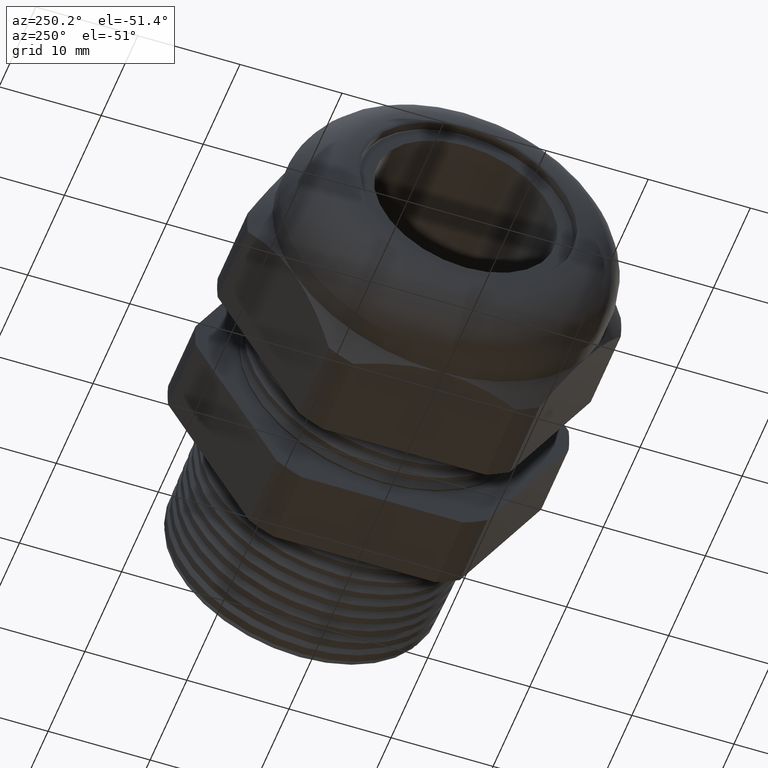
[diagram: clean part render]
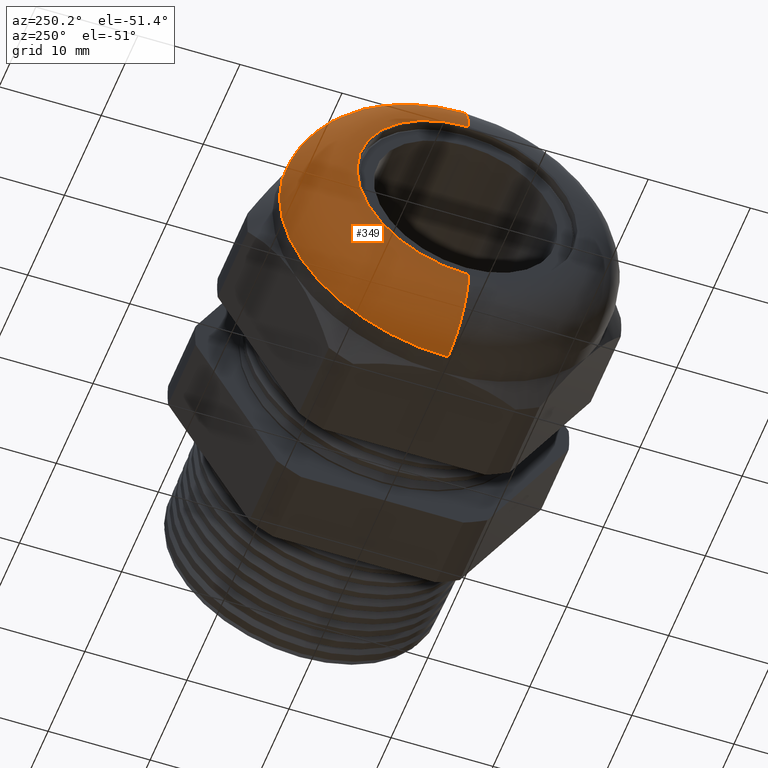
[diagram: same view with one face highlighted and labeled with its STEP entity id]
A machine part, auxiliary view. The second image highlights one B-rep face of the part: STEP entity #349.
In plain terms, the highlighted toroidal blend (fillet) surface has major radius 10.922 mm and minor (blend) radius 5.588 mm.
Its self-contained STEP definition (entity closure, byte-faithful):
#349 = ADVANCED_FACE ( 'NONE', ( #1920 ), #1918, .T. ) ;
#352 = EDGE_LOOP ( 'NONE', ( #358, #3797, #3792, #3794 ) ) ;
#358 = ORIENTED_EDGE ( 'NONE', *, *, #361, .F. ) ;
#359 = VERTEX_POINT ( 'NONE', #1964 ) ;
#361 = EDGE_CURVE ( 'NONE', #359, #3799, #1963, .T. ) ;
#1915 = DIRECTION ( 'NONE',  ( 0.0000000000000000000, 0.0000000000000000000, 1.000000000000000000 ) ) ;
#1916 = DIRECTION ( 'NONE',  ( -1.000000000000000000, 0.0000000000000000000, 0.0000000000000000000 ) ) ;
#1917 = AXIS2_PLACEMENT_3D ( 'NONE', #1919, #1916, #1915 ) ;
#1918 = TOROIDAL_SURFACE ( 'NONE', #1917, 0.4300000000000002200, 0.2200000000000000000 ) ;
#1919 = CARTESIAN_POINT ( 'NONE',  ( -1.310000000000000100, 0.0000000000000000000, 0.0000000000000000000 ) ) ;
#1920 = FACE_OUTER_BOUND ( 'NONE', #352, .T. ) ;
#1959 = DIRECTION ( 'NONE',  ( 0.0000000000000000000, 0.0000000000000000000, 1.000000000000000000 ) ) ;
#1960 = DIRECTION ( 'NONE',  ( 1.000000000000000000, 0.0000000000000000000, 0.0000000000000000000 ) ) ;
#1961 = CARTESIAN_POINT ( 'NONE',  ( -1.310000000000000100, 0.0000000000000000000, 0.0000000000000000000 ) ) ;
#1962 = AXIS2_PLACEMENT_3D ( 'NONE', #1961, #1960, #1959 ) ;
#1963 = CIRCLE ( 'NONE', #1962, 0.6500000000000001300 ) ;
#1964 = CARTESIAN_POINT ( 'NONE',  ( -1.310000000000000100, 0.0000000000000000000, -0.6500000000000001300 ) ) ;
#3467 = CIRCLE ( 'NONE', #3529, 0.2200000000000000000 ) ;
#3513 = CARTESIAN_POINT ( 'NONE',  ( -1.310000000000000100, 7.960204194457797900E-017, 0.6500000000000001300 ) ) ;
#3514 = CARTESIAN_POINT ( 'NONE',  ( -1.530000000000000000, 6.613092715395709900E-017, -0.4300000000000002200 ) ) ;
#3515 = DIRECTION ( 'NONE',  ( 0.0000000000000000000, -1.224646799147353200E-016, 1.000000000000000000 ) ) ;
#3516 = DIRECTION ( 'NONE',  ( 0.0000000000000000000, 1.000000000000000000, 1.224646799147353200E-016 ) ) ;
#3517 = CARTESIAN_POINT ( 'NONE',  ( -1.310000000000000100, 5.265981236333621300E-017, -0.4300000000000002200 ) ) ;
#3518 = AXIS2_PLACEMENT_3D ( 'NONE', #3517, #3516, #3515 ) ;
#3519 = CIRCLE ( 'NONE', #3518, 0.2200000000000000000 ) ;
#3520 = DIRECTION ( 'NONE',  ( 0.0000000000000000000, 0.0000000000000000000, 1.000000000000000000 ) ) ;
#3521 = DIRECTION ( 'NONE',  ( -1.000000000000000000, 0.0000000000000000000, 0.0000000000000000000 ) ) ;
#3522 = CARTESIAN_POINT ( 'NONE',  ( -1.530000000000000000, 0.0000000000000000000, 0.0000000000000000000 ) ) ;
#3523 = AXIS2_PLACEMENT_3D ( 'NONE', #3522, #3521, #3520 ) ;
#3524 = CIRCLE ( 'NONE', #3523, 0.4300000000000002200 ) ;
#3525 = CARTESIAN_POINT ( 'NONE',  ( -1.530000000000000000, 0.0000000000000000000, 0.4300000000000002200 ) ) ;
#3526 = DIRECTION ( 'NONE',  ( 0.0000000000000000000, 0.0000000000000000000, -1.000000000000000000 ) ) ;
#3527 = DIRECTION ( 'NONE',  ( 0.0000000000000000000, -1.000000000000000000, 0.0000000000000000000 ) ) ;
#3528 = CARTESIAN_POINT ( 'NONE',  ( -1.310000000000000100, 0.0000000000000000000, 0.4300000000000002200 ) ) ;
#3529 = AXIS2_PLACEMENT_3D ( 'NONE', #3528, #3527, #3526 ) ;
#3791 = EDGE_CURVE ( 'NONE', #3799, #3793, #3467, .T. ) ;
#3792 = ORIENTED_EDGE ( 'NONE', *, *, #3795, .F. ) ;
#3793 = VERTEX_POINT ( 'NONE', #3525 ) ;
#3794 = ORIENTED_EDGE ( 'NONE', *, *, #3791, .F. ) ;
#3795 = EDGE_CURVE ( 'NONE', #3793, #3798, #3524, .T. ) ;
#3796 = EDGE_CURVE ( 'NONE', #359, #3798, #3519, .T. ) ;
#3797 = ORIENTED_EDGE ( 'NONE', *, *, #3796, .T. ) ;
#3798 = VERTEX_POINT ( 'NONE', #3514 ) ;
#3799 = VERTEX_POINT ( 'NONE', #3513 ) ;